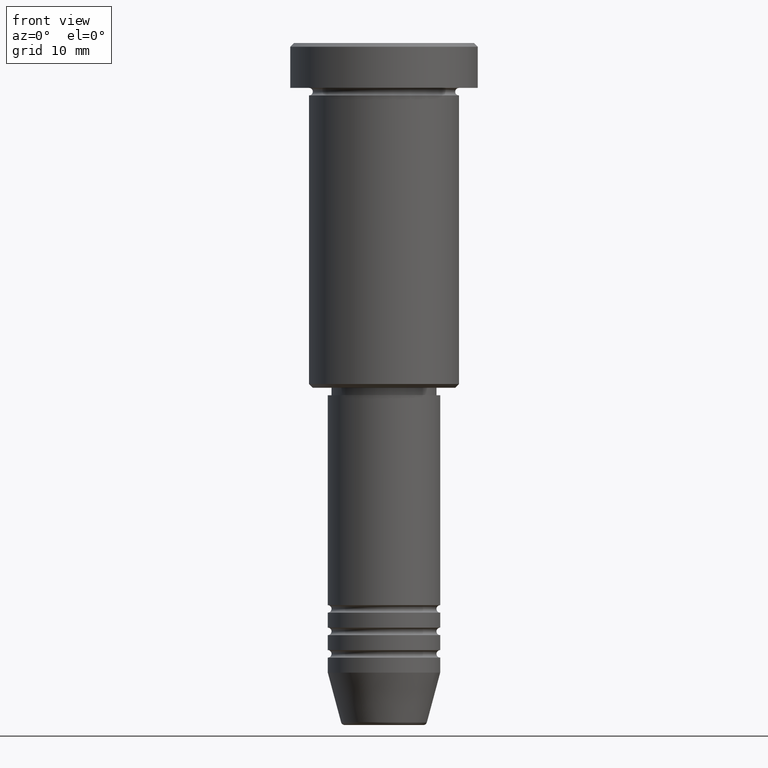
[diagram: clean part render]
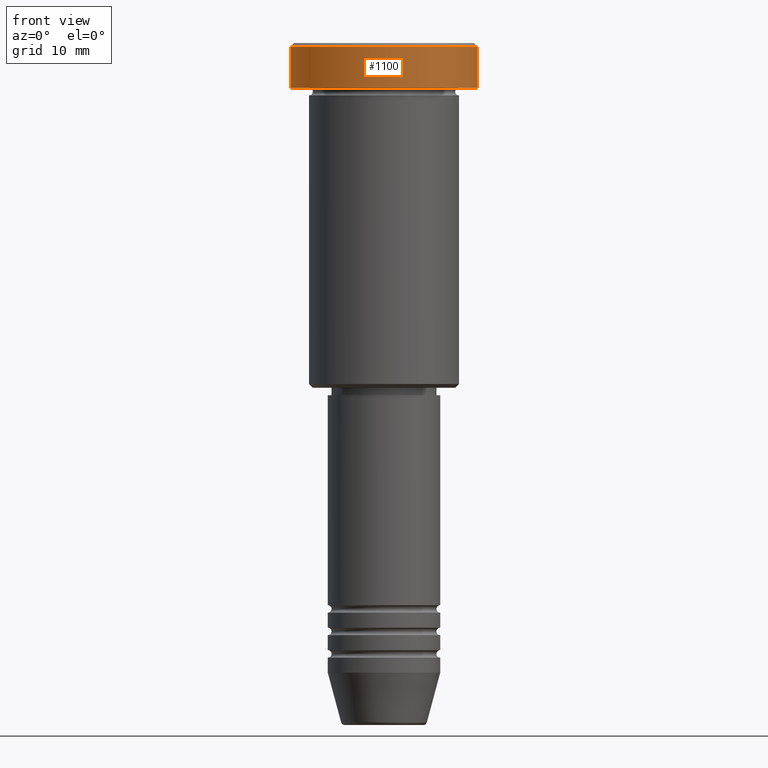
[diagram: same view with one face highlighted and labeled with its STEP entity id]
A machine part, front view. The second image highlights one B-rep face of the part: STEP entity #1100.
In plain terms, the highlighted cylindrical surface (partial cylindrical patch) has radius 12.5 mm, axis along (-0, -0, 1).
Its self-contained STEP definition (entity closure, byte-faithful):
#26 = CARTESIAN_POINT ( 'NONE',  ( -12.50000000000000000, 1.530808498934191521E-15, -0.5000000000000196509 ) ) ;
#103 = ORIENTED_EDGE ( 'NONE', *, *, #877, .T. ) ;
#115 = DIRECTION ( 'NONE',  ( 0.000000000000000000, 0.000000000000000000, -1.000000000000000000 ) ) ;
#116 = ORIENTED_EDGE ( 'NONE', *, *, #653, .F. ) ;
#325 = AXIS2_PLACEMENT_3D ( 'NONE', #385, #115, #760 ) ;
#336 = FACE_OUTER_BOUND ( 'NONE', #918, .T. ) ;
#366 = LINE ( 'NONE', #630, #640 ) ;
#385 = CARTESIAN_POINT ( 'NONE',  ( 0.000000000000000000, 0.000000000000000000, -0.5000000000000196509 ) ) ;
#414 = CARTESIAN_POINT ( 'NONE',  ( 12.50000000000000000, 0.000000000000000000, -5.999999999999996447 ) ) ;
#434 = DIRECTION ( 'NONE',  ( -0.000000000000000000, -0.000000000000000000, 1.000000000000000000 ) ) ;
#469 = VECTOR ( 'NONE', #1097, 1000.000000000000000 ) ;
#546 = VERTEX_POINT ( 'NONE', #414 ) ;
#548 = CIRCLE ( 'NONE', #565, 12.50000000000000000 ) ;
#565 = AXIS2_PLACEMENT_3D ( 'NONE', #768, #1047, #943 ) ;
#630 = CARTESIAN_POINT ( 'NONE',  ( 12.50000000000000000, 0.000000000000000000, 0.000000000000000000 ) ) ;
#640 = VECTOR ( 'NONE', #434, 1000.000000000000000 ) ;
#653 = EDGE_CURVE ( 'NONE', #1099, #945, #820, .T. ) ;
#679 = CIRCLE ( 'NONE', #325, 12.50000000000000000 ) ;
#685 = EDGE_CURVE ( 'NONE', #908, #945, #679, .T. ) ;
#733 = CARTESIAN_POINT ( 'NONE',  ( -12.50000000000000000, 1.530808498934191521E-15, 0.000000000000000000 ) ) ;
#760 = DIRECTION ( 'NONE',  ( 1.000000000000000000, 0.000000000000000000, 0.000000000000000000 ) ) ;
#768 = CARTESIAN_POINT ( 'NONE',  ( 0.000000000000000000, 0.000000000000000000, -5.999999999999996447 ) ) ;
#783 = CYLINDRICAL_SURFACE ( 'NONE', #910, 12.50000000000000000 ) ;
#820 = LINE ( 'NONE', #733, #469 ) ;
#871 = DIRECTION ( 'NONE',  ( 1.000000000000000000, 0.000000000000000000, 0.000000000000000000 ) ) ;
#877 = EDGE_CURVE ( 'NONE', #546, #908, #366, .T. ) ;
#894 = EDGE_CURVE ( 'NONE', #1099, #546, #548, .T. ) ;
#908 = VERTEX_POINT ( 'NONE', #950 ) ;
#910 = AXIS2_PLACEMENT_3D ( 'NONE', #1139, #1048, #871 ) ;
#918 = EDGE_LOOP ( 'NONE', ( #116, #1068, #103, #1153 ) ) ;
#943 = DIRECTION ( 'NONE',  ( 1.000000000000000000, 0.000000000000000000, 0.000000000000000000 ) ) ;
#945 = VERTEX_POINT ( 'NONE', #26 ) ;
#950 = CARTESIAN_POINT ( 'NONE',  ( 12.50000000000000000, 0.000000000000000000, -0.5000000000000196509 ) ) ;
#960 = CARTESIAN_POINT ( 'NONE',  ( -12.50000000000000000, 1.530808498934191521E-15, -5.999999999999996447 ) ) ;
#1047 = DIRECTION ( 'NONE',  ( -0.000000000000000000, -0.000000000000000000, 1.000000000000000000 ) ) ;
#1048 = DIRECTION ( 'NONE',  ( -0.000000000000000000, -0.000000000000000000, 1.000000000000000000 ) ) ;
#1068 = ORIENTED_EDGE ( 'NONE', *, *, #894, .T. ) ;
#1097 = DIRECTION ( 'NONE',  ( -0.000000000000000000, -0.000000000000000000, 1.000000000000000000 ) ) ;
#1099 = VERTEX_POINT ( 'NONE', #960 ) ;
#1100 = ADVANCED_FACE ( 'NONE', ( #336 ), #783, .T. ) ;
#1139 = CARTESIAN_POINT ( 'NONE',  ( 0.000000000000000000, 0.000000000000000000, 0.000000000000000000 ) ) ;
#1153 = ORIENTED_EDGE ( 'NONE', *, *, #685, .T. ) ;